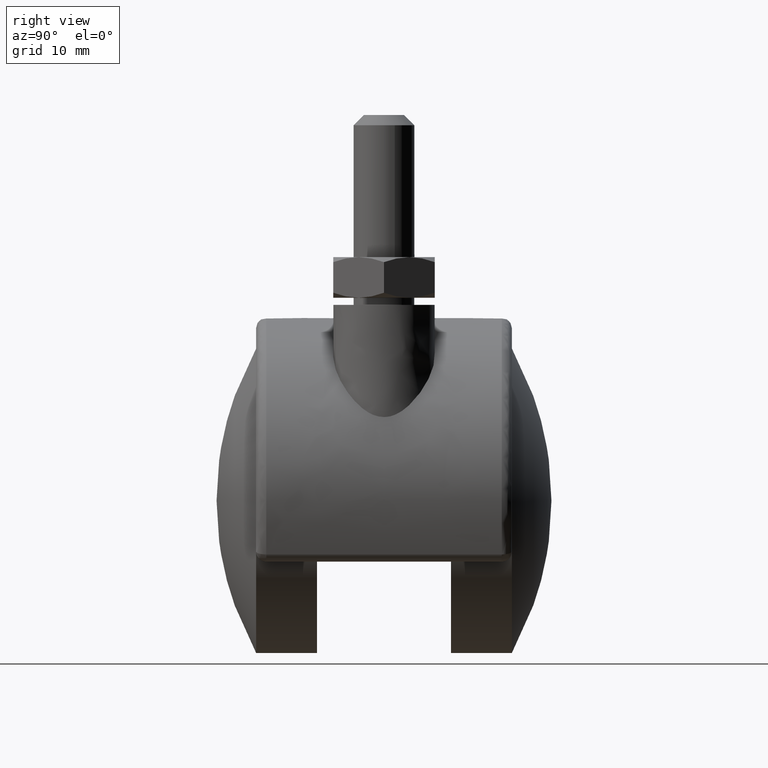
[diagram: clean part render]
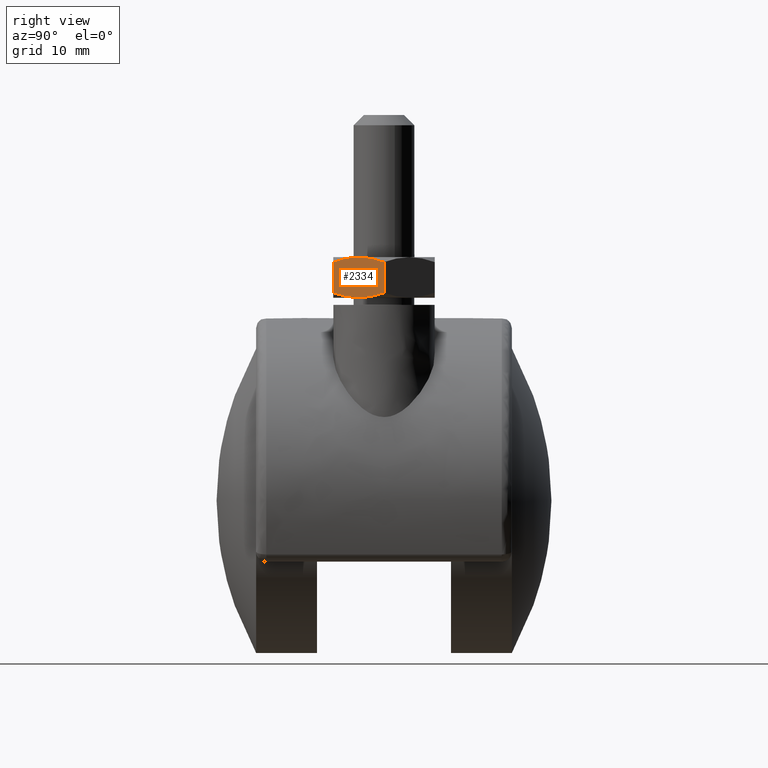
[diagram: same view with one face highlighted and labeled with its STEP entity id]
A machine part, right view. The second image highlights one B-rep face of the part: STEP entity #2334.
In plain terms, the highlighted face is a freeform B-spline surface patch.
Its self-contained STEP definition (entity closure, byte-faithful):
#1472=CARTESIAN_POINT('',(15.330125759460950,-2.499999550600340,23.999998000000001));
#1473=VERTEX_POINT('',#1472);
#1643=CARTESIAN_POINT('',(16.773501000000000,-2.062801E-016,23.509253397898849));
#1644=VERTEX_POINT('',#1643);
#1645=CARTESIAN_POINT('',(15.330125759460950,-2.499999550600340,23.999998000000001));
#1646=CARTESIAN_POINT('',(15.390396098533239,-2.395608248627442,23.999997319017140));
#1647=CARTESIAN_POINT('',(15.451025496701320,-2.290595037983238,23.997210657769521));
#1648=CARTESIAN_POINT('',(15.573105412027889,-2.079146396713918,23.986007160883890));
#1649=CARTESIAN_POINT('',(15.634536333470489,-1.972744906868435,23.977491594533738));
#1650=CARTESIAN_POINT('',(15.818078259684750,-1.654840927248692,23.943792326381050));
#1651=CARTESIAN_POINT('',(15.939436903753480,-1.444641564593712,23.910439523263410));
#1652=CARTESIAN_POINT('',(16.300891291141681,-0.818584125991997,23.781916488981999));
#1653=CARTESIAN_POINT('',(16.538378746407972,-0.407243738015559,23.658425574292089));
#1654=CARTESIAN_POINT('',(16.773501000000000,-2.062801E-016,23.509253397898849));
#1655=B_SPLINE_CURVE_WITH_KNOTS('',3,(#1645,#1646,#1647,#1648,#1649,#1650,#1651,#1652,#1653,#1654),.UNSPECIFIED.,.F.,.U.,(4,2,2,2,4),(0.501324679657454,0.562500000000000,0.625000000000000,0.749999999999999,1.0),.UNSPECIFIED.);
#1656=EDGE_CURVE('',#1473,#1644,#1655,.T.);
#1689=CARTESIAN_POINT('',(13.886749999999999,-4.999999999999800,23.509253068671349));
#1690=VERTEX_POINT('',#1689);
#1691=CARTESIAN_POINT('',(13.886749999999999,-4.999999999999795,23.509253068671320));
#1692=CARTESIAN_POINT('',(14.121437963541990,-4.593508474506294,23.658149751991122));
#1693=CARTESIAN_POINT('',(14.358137000292020,-4.183533667621282,23.781203717957339));
#1694=CARTESIAN_POINT('',(14.717571598152089,-3.560974607522125,23.909423087304010));
#1695=CARTESIAN_POINT('',(14.838116365799319,-3.352184920349212,23.942740651437859));
#1696=CARTESIAN_POINT('',(15.080876070040960,-2.931712728182946,23.987913754423509));
#1697=CARTESIAN_POINT('',(15.203092526250090,-2.720027591139393,23.999749765903911));
#1698=CARTESIAN_POINT('',(15.327515761118599,-2.504520200878664,23.999996988377511));
#1699=CARTESIAN_POINT('',(15.328820676111750,-2.502260021540112,23.999998274323818));
#1700=CARTESIAN_POINT('',(15.330125759460950,-2.499999550600340,23.999998000000001));
#1701=B_SPLINE_CURVE_WITH_KNOTS('',3,(#1691,#1692,#1693,#1694,#1695,#1696,#1697,#1698,#1699,#1700),.UNSPECIFIED.,.F.,.U.,(4,2,2,2,4),(0.0,0.250000000000000,0.375000000000000,0.500000000000000,0.501324679657454),.UNSPECIFIED.);
#1702=EDGE_CURVE('',#1690,#1473,#1701,.T.);
#1885=CARTESIAN_POINT('',(15.330125759460950,-2.499999550600340,19.999997999999952));
#1886=VERTEX_POINT('',#1885);
#2040=CARTESIAN_POINT('',(16.773501000000000,-2.062801E-016,20.490742602101150));
#2041=VERTEX_POINT('',#2040);
#2055=CARTESIAN_POINT('',(15.330125759460950,-2.499999550600340,19.999997999999952));
#2056=CARTESIAN_POINT('',(15.390396098533239,-2.395608248627442,19.999998680982859));
#2057=CARTESIAN_POINT('',(15.451025496701320,-2.290595037983238,20.002785342230482));
#2058=CARTESIAN_POINT('',(15.573105412027889,-2.079146396713918,20.013988839116109));
#2059=CARTESIAN_POINT('',(15.634536333470480,-1.972744906868434,20.022504405466272));
#2060=CARTESIAN_POINT('',(15.818078259684750,-1.654840927248691,20.056203673618960));
#2061=CARTESIAN_POINT('',(15.939436903753480,-1.444641564593713,20.089556476736590));
#2062=CARTESIAN_POINT('',(16.300891291141671,-0.818584125991998,20.218079511018018));
#2063=CARTESIAN_POINT('',(16.538378746407961,-0.407243738015559,20.341570425707911));
#2064=CARTESIAN_POINT('',(16.773501000000000,-2.062801E-016,20.490742602101150));
#2065=B_SPLINE_CURVE_WITH_KNOTS('',3,(#2055,#2056,#2057,#2058,#2059,#2060,#2061,#2062,#2063,#2064),.UNSPECIFIED.,.F.,.U.,(4,2,2,2,4),(0.501324679657453,0.562499999999998,0.624999999999998,0.749999999999998,1.0),.UNSPECIFIED.);
#2066=EDGE_CURVE('',#1886,#2041,#2065,.T.);
#2085=CARTESIAN_POINT('',(13.886749999999999,-4.999999999999800,20.490742931328651));
#2086=VERTEX_POINT('',#2085);
#2101=CARTESIAN_POINT('',(13.886749999999999,-4.999999999999795,20.490742931328679));
#2102=CARTESIAN_POINT('',(14.121437963541990,-4.593508474506293,20.341846248008888));
#2103=CARTESIAN_POINT('',(14.358137000292020,-4.183533667621282,20.218792282042660));
#2104=CARTESIAN_POINT('',(14.717571598152089,-3.560974607522123,20.090572912695979));
#2105=CARTESIAN_POINT('',(14.838116365799319,-3.352184920349214,20.057255348562141));
#2106=CARTESIAN_POINT('',(15.080876070040970,-2.931712728182948,20.012082245576501));
#2107=CARTESIAN_POINT('',(15.203092526250080,-2.720027591139392,20.000246234096078));
#2108=CARTESIAN_POINT('',(15.327515761118599,-2.504520200878665,19.999999011622489));
#2109=CARTESIAN_POINT('',(15.328820676111750,-2.502260021540113,19.999997725676181));
#2110=CARTESIAN_POINT('',(15.330125759460950,-2.499999550600340,19.999997999999952));
#2111=B_SPLINE_CURVE_WITH_KNOTS('',3,(#2101,#2102,#2103,#2104,#2105,#2106,#2107,#2108,#2109,#2110),.UNSPECIFIED.,.F.,.U.,(4,2,2,2,4),(0.0,0.249999999999999,0.374999999999999,0.499999999999998,0.501324679657453),.UNSPECIFIED.);
#2112=EDGE_CURVE('',#2086,#1886,#2111,.T.);
#2308=CARTESIAN_POINT('',(13.886749999999999,-4.999999999999800,20.490742931328651));
#2309=CARTESIAN_POINT('',(13.886749999999999,-4.999999999999800,23.509253068671349));
#2310=QUASI_UNIFORM_CURVE('',1,(#2308,#2309),.UNSPECIFIED.,.F.,.U.);
#2311=EDGE_CURVE('',#2086,#1690,#2310,.T.);
#2317=CARTESIAN_POINT('',(16.917694061047651,0.249749737763395,19.800198082851001));
#2318=CARTESIAN_POINT('',(13.742556938952349,-5.249749737763194,19.800198082851001));
#2319=CARTESIAN_POINT('',(16.917694061047651,0.249749737763395,24.199798095962890));
#2320=CARTESIAN_POINT('',(13.742556938952349,-5.249749737763194,24.199798095962890));
#2321=B_SPLINE_SURFACE_WITH_KNOTS('',1,1,((#2317,#2319),(#2318,#2320)),.UNSPECIFIED.,.F.,.F.,.U.,(2,2),(2,2),(0.0,6.350274814952883),(0.0,4.399600013111890),.UNSPECIFIED.);
#2322=ORIENTED_EDGE('',*,*,#1702,.F.);
#2323=ORIENTED_EDGE('',*,*,#2311,.F.);
#2324=ORIENTED_EDGE('',*,*,#2112,.T.);
#2325=ORIENTED_EDGE('',*,*,#2066,.T.);
#2326=CARTESIAN_POINT('',(16.773501000000000,-2.062801E-016,20.490742602101150));
#2327=CARTESIAN_POINT('',(16.773501000000000,-2.062801E-016,23.509253397898849));
#2328=QUASI_UNIFORM_CURVE('',1,(#2326,#2327),.UNSPECIFIED.,.F.,.U.);
#2329=EDGE_CURVE('',#2041,#1644,#2328,.T.);
#2330=ORIENTED_EDGE('',*,*,#2329,.T.);
#2331=ORIENTED_EDGE('',*,*,#1656,.F.);
#2332=EDGE_LOOP('',(#2322,#2323,#2324,#2325,#2330,#2331));
#2333=FACE_OUTER_BOUND('',#2332,.T.);
#2334=ADVANCED_FACE('',(#2333),#2321,.F.);